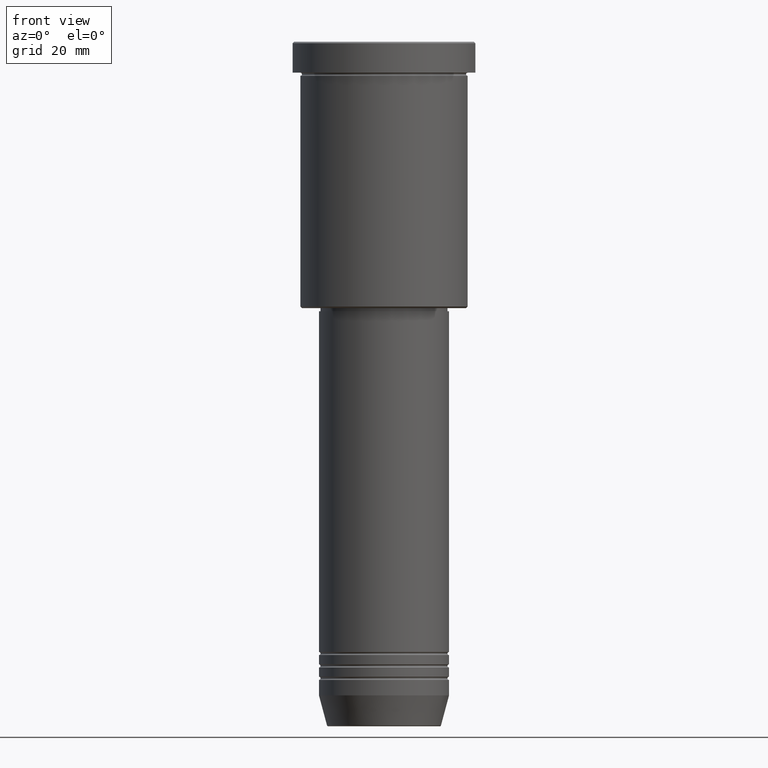
[diagram: clean part render]
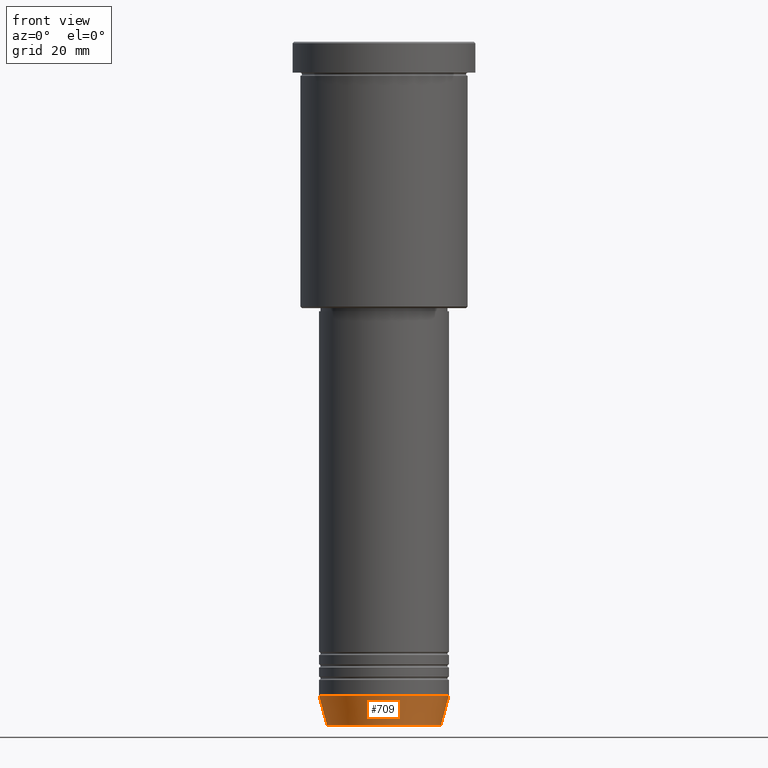
[diagram: same view with one face highlighted and labeled with its STEP entity id]
A machine part, front view. The second image highlights one B-rep face of the part: STEP entity #709.
In plain terms, the highlighted conical surface has half-angle 15 deg.
Its self-contained STEP definition (entity closure, byte-faithful):
#29 = VECTOR ( 'NONE', #319, 1000.000000000000114 ) ;
#128 = EDGE_CURVE ( 'NONE', #1008, #335, #242, .T. ) ;
#184 = DIRECTION ( 'NONE',  ( -0.000000000000000000, -0.000000000000000000, 1.000000000000000000 ) ) ;
#223 = DIRECTION ( 'NONE',  ( 1.000000000000000000, 0.000000000000000000, 0.000000000000000000 ) ) ;
#242 = LINE ( 'NONE', #791, #753 ) ;
#282 = FACE_OUTER_BOUND ( 'NONE', #609, .T. ) ;
#286 = ORIENTED_EDGE ( 'NONE', *, *, #1129, .T. ) ;
#319 = DIRECTION ( 'NONE',  ( -0.2588190451025211836, 3.169619151431770488E-17, 0.9659258262890680902 ) ) ;
#335 = VERTEX_POINT ( 'NONE', #998 ) ;
#394 = VERTEX_POINT ( 'NONE', #934 ) ;
#442 = ORIENTED_EDGE ( 'NONE', *, *, #794, .F. ) ;
#449 = CARTESIAN_POINT ( 'NONE',  ( -18.41980749484383040, 2.413767053578267064E-15, -220.6294095225512990 ) ) ;
#457 = DIRECTION ( 'NONE',  ( -0.000000000000000000, -0.000000000000000000, 1.000000000000000000 ) ) ;
#462 = EDGE_CURVE ( 'NONE', #748, #394, #876, .T. ) ;
#471 = AXIS2_PLACEMENT_3D ( 'NONE', #723, #457, #548 ) ;
#488 = CIRCLE ( 'NONE', #641, 21.00000000000000000 ) ;
#548 = DIRECTION ( 'NONE',  ( 1.000000000000000000, 0.000000000000000000, 0.000000000000000000 ) ) ;
#572 = DIRECTION ( 'NONE',  ( -0.000000000000000000, -0.000000000000000000, 1.000000000000000000 ) ) ;
#587 = CIRCLE ( 'NONE', #1123, 18.41980749484383040 ) ;
#609 = EDGE_LOOP ( 'NONE', ( #742, #286, #853, #442 ) ) ;
#641 = AXIS2_PLACEMENT_3D ( 'NONE', #1014, #184, #1171 ) ;
#674 = CARTESIAN_POINT ( 'NONE',  ( -21.00000000000000000, 2.571758278209441661E-15, -211.0000000000000284 ) ) ;
#692 = CARTESIAN_POINT ( 'NONE',  ( 0.000000000000000000, 0.000000000000000000, -220.6294095225512990 ) ) ;
#709 = ADVANCED_FACE ( 'NONE', ( #282 ), #832, .T. ) ;
#723 = CARTESIAN_POINT ( 'NONE',  ( 0.000000000000000000, 0.000000000000000000, -211.0000000000000284 ) ) ;
#742 = ORIENTED_EDGE ( 'NONE', *, *, #462, .F. ) ;
#748 = VERTEX_POINT ( 'NONE', #449 ) ;
#753 = VECTOR ( 'NONE', #1153, 1000.000000000000114 ) ;
#791 = CARTESIAN_POINT ( 'NONE',  ( 21.00000000000000000, 0.000000000000000000, -211.0000000000000284 ) ) ;
#794 = EDGE_CURVE ( 'NONE', #394, #335, #488, .T. ) ;
#832 = CONICAL_SURFACE ( 'NONE', #471, 21.00000000000000000, 0.2617993877991499074 ) ;
#853 = ORIENTED_EDGE ( 'NONE', *, *, #128, .T. ) ;
#876 = LINE ( 'NONE', #674, #29 ) ;
#934 = CARTESIAN_POINT ( 'NONE',  ( -21.00000000000000000, 2.571758278209441661E-15, -211.0000000000000284 ) ) ;
#998 = CARTESIAN_POINT ( 'NONE',  ( 21.00000000000000000, 0.000000000000000000, -211.0000000000000284 ) ) ;
#1008 = VERTEX_POINT ( 'NONE', #1150 ) ;
#1014 = CARTESIAN_POINT ( 'NONE',  ( 0.000000000000000000, 0.000000000000000000, -211.0000000000000284 ) ) ;
#1123 = AXIS2_PLACEMENT_3D ( 'NONE', #692, #572, #223 ) ;
#1129 = EDGE_CURVE ( 'NONE', #748, #1008, #587, .T. ) ;
#1150 = CARTESIAN_POINT ( 'NONE',  ( 18.41980749484383040, 0.000000000000000000, -220.6294095225512990 ) ) ;
#1153 = DIRECTION ( 'NONE',  ( 0.2588190451025211836, 0.000000000000000000, 0.9659258262890680902 ) ) ;
#1171 = DIRECTION ( 'NONE',  ( 1.000000000000000000, 0.000000000000000000, 0.000000000000000000 ) ) ;